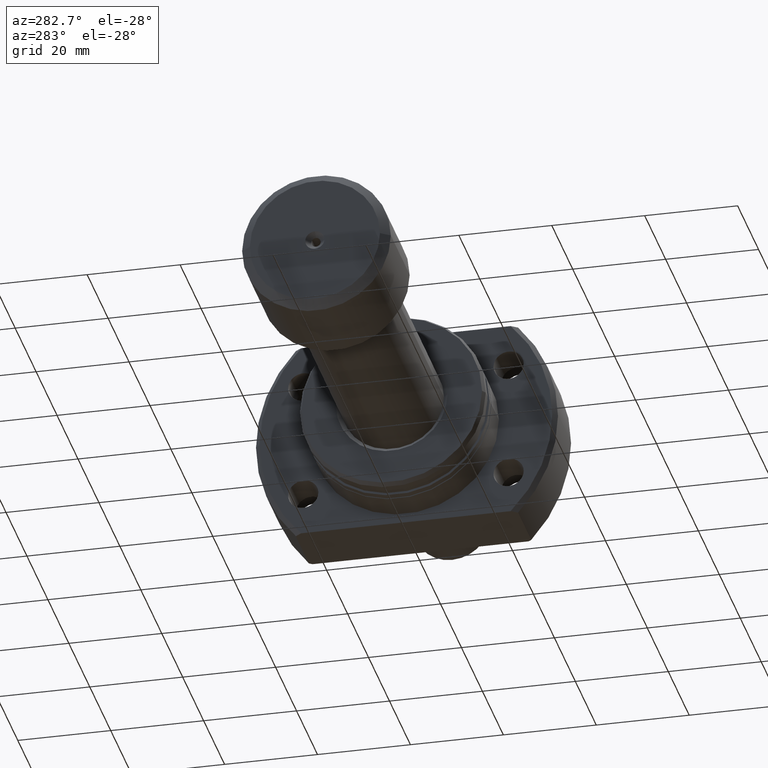
[diagram: clean part render]
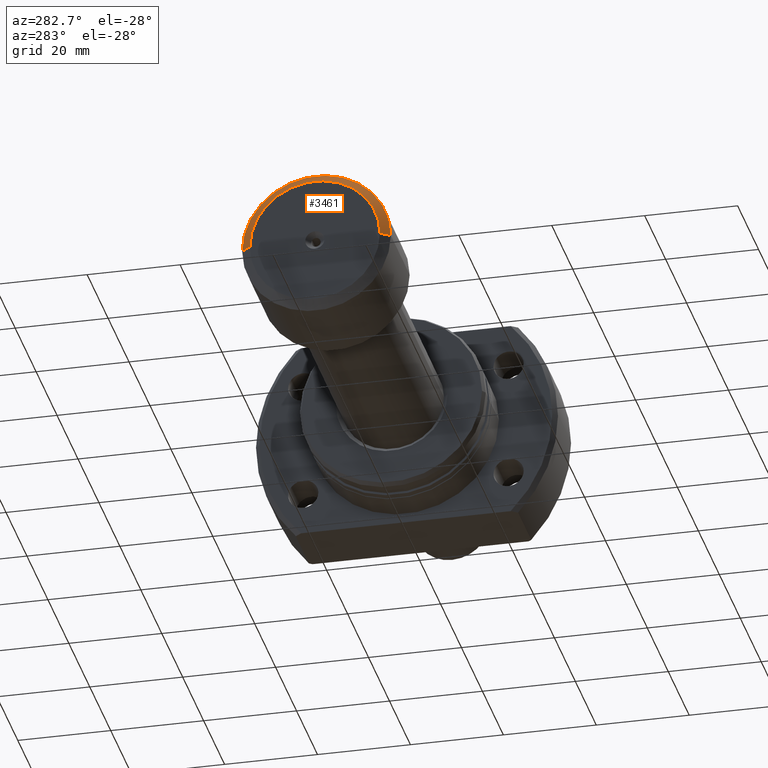
[diagram: same view with one face highlighted and labeled with its STEP entity id]
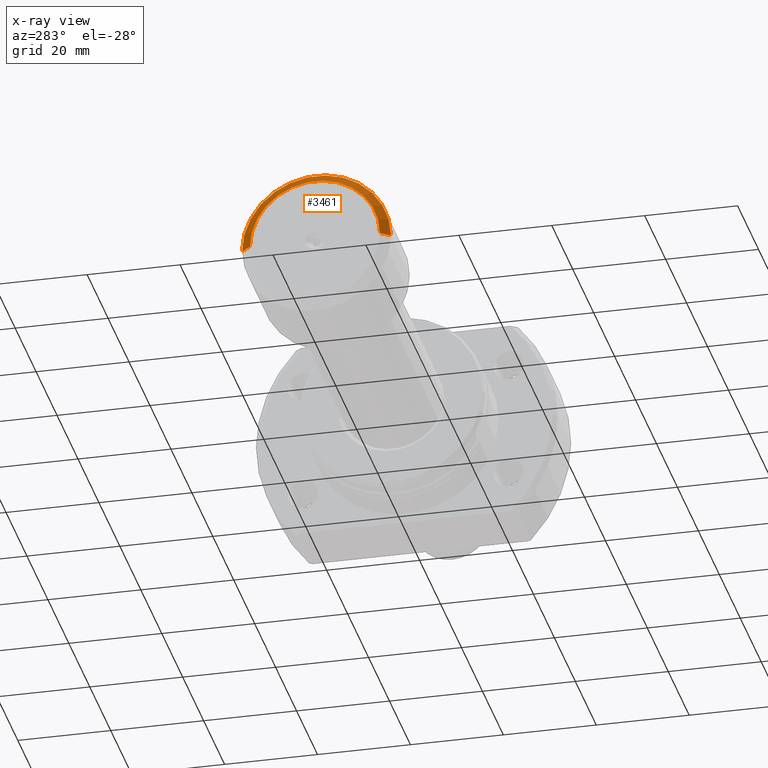
[diagram: x-ray of the same camera — body ghosted, the highlighted face saturated]
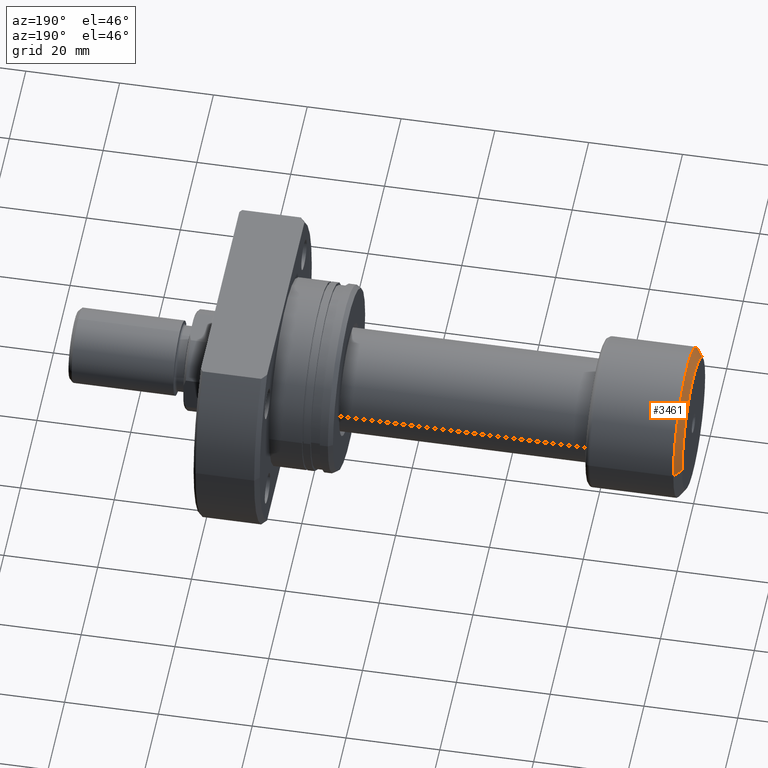
[diagram: same view with one face highlighted and labeled with its STEP entity id]
A machine part, auxiliary view. The second image highlights one B-rep face of the part: STEP entity #3461.
The next image is the same camera in x-ray: the body ghosted, the highlighted face saturated — about 0% of this face is hidden behind the body in this view.
A second angle (auxiliary view) of the same face is appended — the face is thin or edge-on in the first view.
In plain terms, the highlighted conical surface has half-angle 53.13 deg.
Its self-contained STEP definition (entity closure, byte-faithful):
#356 = ORIENTED_EDGE ( 'NONE', *, *, #704, .T. ) ;
#383 = ORIENTED_EDGE ( 'NONE', *, *, #2622, .F. ) ;
#398 = VECTOR ( 'NONE', #793, 999.9999999999998863 ) ;
#483 = DIRECTION ( 'NONE',  ( -1.000000000000000000, -1.069542322069065801E-17, -0.000000000000000000 ) ) ;
#704 = EDGE_CURVE ( 'NONE', #1809, #3650, #3019, .T. ) ;
#739 = DIRECTION ( 'NONE',  ( 1.355252715606880543E-17, -1.000000000000000000, 0.000000000000000000 ) ) ;
#757 = CONICAL_SURFACE ( 'NONE', #2845, 14.00000000000000000, 0.9272952180016120760 ) ;
#761 = CARTESIAN_POINT ( 'NONE',  ( 1.564769593716625324E-15, 1.673587304766748118E-32, 0.000000000000000000 ) ) ;
#792 = CARTESIAN_POINT ( 'NONE',  ( 1.500000000000002220, -16.00000000000000000, 1.959434878635765526E-15 ) ) ;
#793 = DIRECTION ( 'NONE',  ( 0.6000000000000001998, -0.7999999999999999334, 9.797174393178826150E-17 ) ) ;
#806 = CARTESIAN_POINT ( 'NONE',  ( 1.714505518806294638E-15, -14.00000000000000000, 1.714505518806294638E-15 ) ) ;
#881 = VERTEX_POINT ( 'NONE', #2173 ) ;
#992 = CIRCLE ( 'NONE', #2238, 14.00000000000000000 ) ;
#1022 = DIRECTION ( 'NONE',  ( -1.000000000000000000, -1.069542322069065801E-17, -0.000000000000000000 ) ) ;
#1330 = FACE_OUTER_BOUND ( 'NONE', #1381, .T. ) ;
#1365 = LINE ( 'NONE', #3356, #3311 ) ;
#1381 = EDGE_LOOP ( 'NONE', ( #1407, #2100, #356, #383 ) ) ;
#1400 = EDGE_CURVE ( 'NONE', #2854, #881, #992, .T. ) ;
#1407 = ORIENTED_EDGE ( 'NONE', *, *, #1400, .F. ) ;
#1809 = VERTEX_POINT ( 'NONE', #792 ) ;
#2100 = ORIENTED_EDGE ( 'NONE', *, *, #2923, .T. ) ;
#2173 = CARTESIAN_POINT ( 'NONE',  ( 1.415033668626956010E-15, 14.00000000000000000, 0.000000000000000000 ) ) ;
#2238 = AXIS2_PLACEMENT_3D ( 'NONE', #761, #483, #2760 ) ;
#2265 = DIRECTION ( 'NONE',  ( 0.6000000000000001998, 0.7999999999999999334, 0.000000000000000000 ) ) ;
#2463 = CARTESIAN_POINT ( 'NONE',  ( 1.564769593716625324E-15, 1.673587304766748118E-32, 0.000000000000000000 ) ) ;
#2614 = CARTESIAN_POINT ( 'NONE',  ( 1.500000000000001776, 16.00000000000000000, 0.000000000000000000 ) ) ;
#2622 = EDGE_CURVE ( 'NONE', #881, #3650, #1365, .T. ) ;
#2645 = CARTESIAN_POINT ( 'NONE',  ( 1.714505518806294638E-15, -14.00000000000000000, 1.836970198721029589E-15 ) ) ;
#2703 = CARTESIAN_POINT ( 'NONE',  ( 1.500000000000001998, 1.604313483103600935E-17, 0.000000000000000000 ) ) ;
#2760 = DIRECTION ( 'NONE',  ( 1.069542322069066109E-17, -1.000000000000000000, 0.000000000000000000 ) ) ;
#2793 = DIRECTION ( 'NONE',  ( 1.000000000000000000, 1.069542322069065801E-17, 0.000000000000000000 ) ) ;
#2845 = AXIS2_PLACEMENT_3D ( 'NONE', #2463, #2793, #3602 ) ;
#2854 = VERTEX_POINT ( 'NONE', #2645 ) ;
#2923 = EDGE_CURVE ( 'NONE', #2854, #1809, #3350, .T. ) ;
#3019 = CIRCLE ( 'NONE', #3372, 16.00000000000000000 ) ;
#3311 = VECTOR ( 'NONE', #2265, 999.9999999999998863 ) ;
#3350 = LINE ( 'NONE', #806, #398 ) ;
#3356 = CARTESIAN_POINT ( 'NONE',  ( 1.415033668626956010E-15, 14.00000000000000000, 0.000000000000000000 ) ) ;
#3372 = AXIS2_PLACEMENT_3D ( 'NONE', #2703, #1022, #739 ) ;
#3461 = ADVANCED_FACE ( 'NONE', ( #1330 ), #757, .T. ) ;
#3602 = DIRECTION ( 'NONE',  ( -1.069542322069066109E-17, 1.000000000000000000, 0.000000000000000000 ) ) ;
#3650 = VERTEX_POINT ( 'NONE', #2614 ) ;